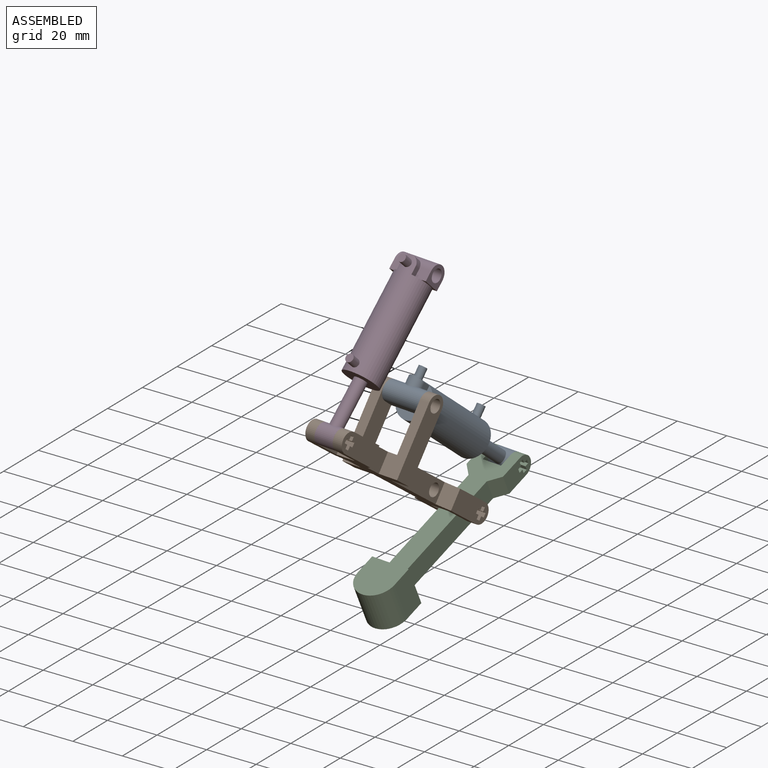
[diagram: assembled view]
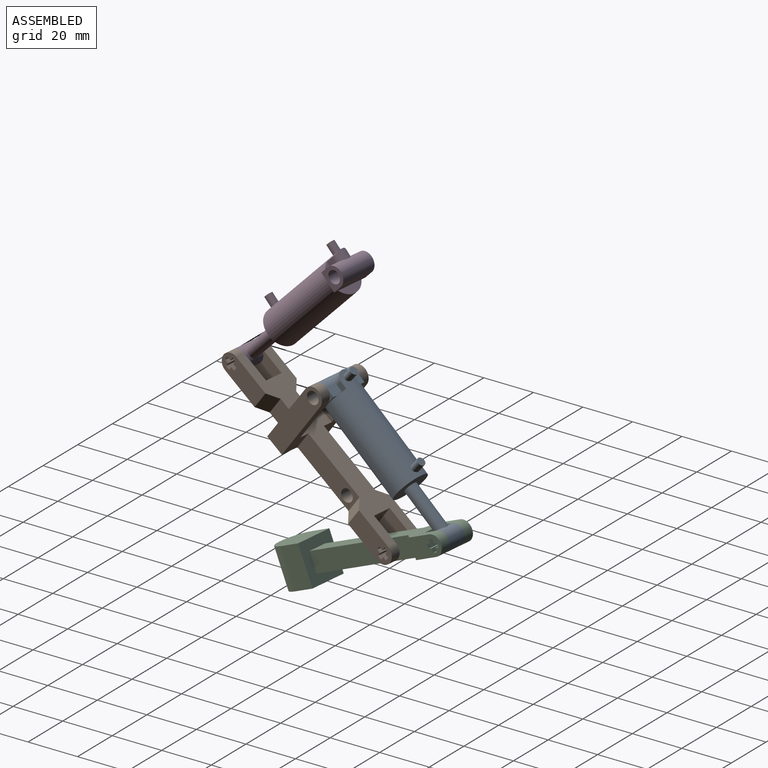
[diagram: assembled view, second angle]
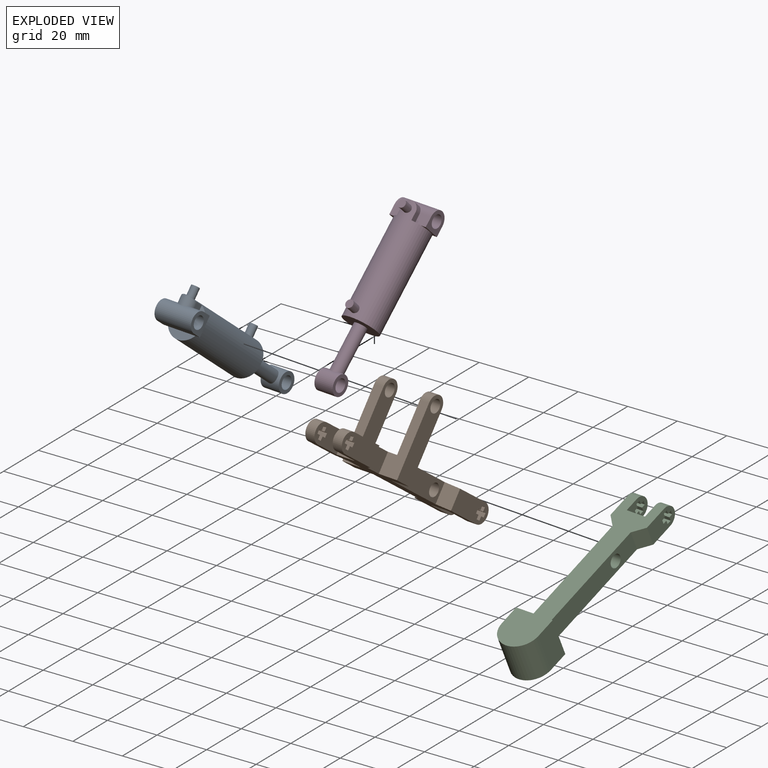
[diagram: exploded view]
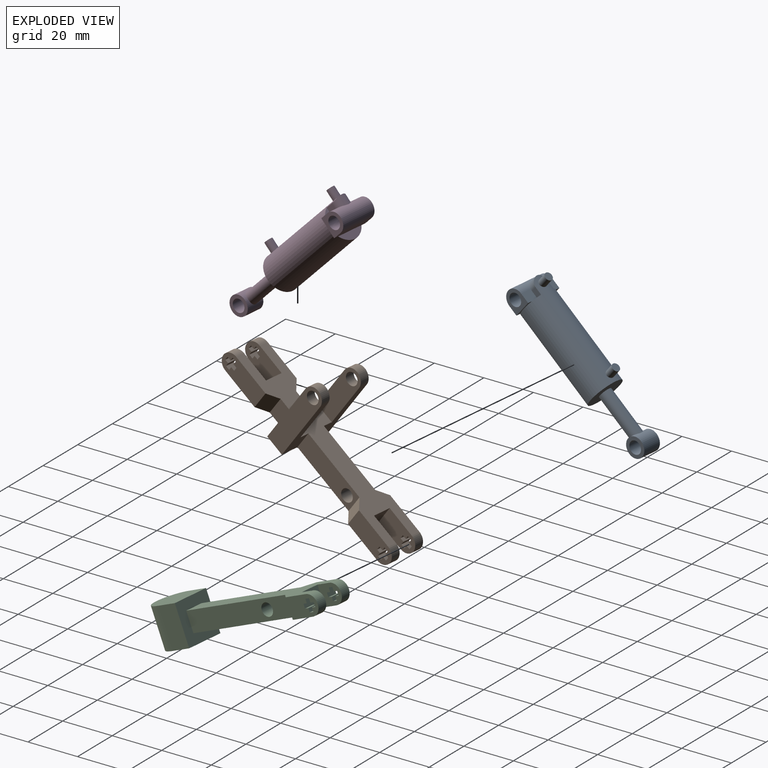
[diagram: exploded view, second angle]
ASSEMBLY  parts=4 mates=7
PART A: 26 faces, bbox 15.9x18.3x71.4 mm
  f0: plane 2.77x2.43mm, normal (0,0,1), area 4mm2, adj f2,f4,f16
  f1: plane 4.86x3.97mm, normal (0,1,0), area 18.9mm2, adj f5,f8,f9,f12,f14,f15
  f2: plane 4.86x3.97mm, normal (0,1,0), area 18.9mm2, adj f0,f7,f10,f12,f14,f16
  f3: plane 11.88x3.18mm, normal (0,0,1), area 26.5mm2, adj f4,f11
  f4: cylinder r=7.14mm len=44.45mm, axis (0,0,-1), area 1731.3mm2, adj f0,f3,f5,f6,f7,f8,f14,f15
  f5: plane 2.77x2.43mm, normal (0,0,1), area 4mm2, adj f1,f4,f15
  f6: plane 14.29x14.29mm, normal (0,0,-1), area 140.1mm2, adj f4,f21
  f7: plane 7.94x2mm, normal (0,0,-1), area 9.4mm2, adj f2,f4,f10,f11
  f8: plane 7.94x2mm, normal (0,0,-1), area 9.4mm2, adj f1,f4,f9,f11
  f9: plane 7.94x7.94mm, normal (1,0,0), area 36mm2, adj f1,f8,f11,f12,f13
  f10: plane 7.94x7.94mm, normal (-1,0,0), area 36mm2, adj f2,f7,f11,f12,f13
  f11: plane 15.88x3.97mm, normal (0,-1,0), area 63mm2, adj f3,f7,f8,f9,f10,f12
  f12: cylinder r=3.97mm len=15.88mm, axis (1,0,0), area 186.5mm2, adj f1,f2,f9,f10,f11,f14
  f13: cylinder r=2.54mm len=15.88mm, axis (1,0,0), area 253.4mm2, adj f9,f10
  f14: cylinder r=3.17mm len=6.35mm, axis (0,-1,0), area 31.3mm2, adj f1,f2,f4,f12,f15,f16
  f15: plane 3.18x2.43mm, normal (1,0,0), area 7.7mm2, adj f1,f4,f5,f14
  f16: plane 3.18x2.43mm, normal (-1,0,0), area 7.7mm2, adj f0,f2,f4,f14
  f17: cylinder r=1.59mm len=4.2mm, axis (0,-1,0), area 41mm2, adj f4,f18
  f18: plane 3.18x3.18mm, normal (0,1,0), area 7.9mm2, adj f17
  f19: cylinder r=1.59mm len=4.2mm, axis (0,-1,0), area 41mm2, adj f4,f20
  f20: plane 3.18x3.18mm, normal (0,1,0), area 7.9mm2, adj f19
  f21: cylinder r=2.54mm len=18.38mm, axis (0,0,1), area 285.8mm2, adj f6,f24
  f22: plane 7.94x7.94mm, normal (1,0,0), area 29.2mm2, adj f24,f25
  f23: plane 7.94x7.94mm, normal (-1,0,0), area 29.2mm2, adj f24,f25
  f24: cylinder r=3.97mm len=7.94mm, axis (-1,0,0), area 176.4mm2, adj f21,f22,f23
  f25: cylinder r=2.54mm len=7.94mm, axis (-1,0,0), area 126.7mm2, adj f22,f23
PART B: 85 faces, bbox 23.8x90.5x31.8 mm
  f0: plane 82.55x15.88mm, normal (0,0,-1), area 812.8mm2, adj f1,f2,f3,f4,f5,f7,f8,f9
  f1: plane 7.94x7.14mm, normal (1,0,0), area 56.7mm2, adj f0,f6,f44,f52
  f2: plane 27.78x7.94mm, normal (-1,0,0), area 200.2mm2, adj f0,f6,f16,f45,f47
  f3: plane 15.88x7.94mm, normal (1,0,0), area 105.8mm2, adj f0,f6,f8,f18,f19,f20,f21,f22
  f4: plane 15.88x7.94mm, normal (-1,0,0), area 105.8mm2, adj f0,f6,f8,f17,f31,f32,f33,f34
  f5: plane 19.84x7.94mm, normal (1,0,0), area 137.3mm2, adj f0,f6,f17,f31,f32,f33,f34,f35
  f6: plane 82.55x23.81mm, normal (0,0,1), area 875.8mm2, adj f1,f2,f3,f4,f5,f7,f8,f9
  f7: plane 19.84x7.94mm, normal (-1,0,0), area 137.3mm2, adj f0,f6,f18,f19,f20,f21,f22,f23
  f8: plane 7.94x7.94mm, normal (0,-1,0), area 63mm2, adj f0,f3,f4,f6
  f9: plane 27.78x7.94mm, normal (1,0,0), area 200.2mm2, adj f0,f6,f16,f46,f50
  f10: plane 19.84x7.94mm, normal (1,0,0), area 137.3mm2, adj f0,f6,f44,f58,f73,f74,f75,f76
  f11: plane 15.88x7.94mm, normal (-1,0,0), area 105.8mm2, adj f0,f6,f12,f58,f73,f74,f75,f76
  f12: plane 7.94x7.94mm, normal (0,1,0), area 63mm2, adj f0,f6,f11,f13
  f13: plane 15.88x7.94mm, normal (1,0,0), area 105.8mm2, adj f0,f6,f12,f57,f61,f62,f63,f64
  f14: plane 19.84x7.94mm, normal (-1,0,0), area 137.3mm2, adj f0,f6,f43,f57,f61,f62,f63,f64
  f15: plane 7.94x7.14mm, normal (-1,0,0), area 56.7mm2, adj f0,f6,f43,f49
  f16: cylinder r=2.54mm len=7.94mm, axis (1,0,0), area 126.7mm2, adj f2,f9
  f17: cylinder r=3.97mm len=7.94mm, axis (1,0,0), area 49.5mm2, adj f0,f4,f5,f6
  f18: cylinder r=3.97mm len=7.94mm, axis (1,0,0), area 49.5mm2, adj f0,f3,f6,f7
  f19: plane 3.97x1.57mm, normal (0,-1,0), area 6.2mm2, adj f3,f7,f20,f21
  f20: plane 3.97x1.57mm, normal (0,0,-1), area 6.2mm2, adj f3,f7,f19,f22
  f21: plane 3.97x1.69mm, normal (0,0,-1), area 6.7mm2, adj f3,f7,f19,f30
  f22: plane 3.97x1.69mm, normal (0,-1,0), area 6.7mm2, adj f3,f7,f20,f23
  f23: plane 3.97x1.57mm, normal (0,0,1), area 6.2mm2, adj f3,f7,f22,f24
  f24: plane 3.97x1.57mm, normal (0,-1,0), area 6.2mm2, adj f3,f7,f23,f25
  f25: plane 3.97x1.69mm, normal (0,0,1), area 6.7mm2, adj f3,f7,f24,f26
  f26: plane 3.97x1.57mm, normal (0,1,0), area 6.2mm2, adj f3,f7,f25,f27
  f27: plane 3.97x1.57mm, normal (0,0,1), area 6.2mm2, adj f3,f7,f26,f28
  f28: plane 3.97x1.69mm, normal (0,1,0), area 6.7mm2, adj f3,f7,f27,f29
  f29: plane 3.97x1.57mm, normal (0,0,-1), area 6.2mm2, adj f3,f7,f28,f30
  f30: plane 3.97x1.57mm, normal (0,1,0), area 6.2mm2, adj f3,f7,f21,f29
  f31: plane 3.97x1.57mm, normal (0,1,0), area 6.2mm2, adj f4,f5,f32,f40
  f32: plane 3.97x1.57mm, normal (0,0,-1), area 6.2mm2, adj f4,f5,f31,f33
  f33: plane 3.97x1.69mm, normal (0,1,0), area 6.7mm2, adj f4,f5,f32,f34
  f34: plane 3.97x1.57mm, normal (0,0,1), area 6.2mm2, adj f4,f5,f33,f35
  f35: plane 3.97x1.57mm, normal (0,1,0), area 6.2mm2, adj f4,f5,f34,f36
  f36: plane 3.97x1.69mm, normal (0,0,1), area 6.7mm2, adj f4,f5,f35,f37
  f37: plane 3.97x1.57mm, normal (0,-1,0), area 6.2mm2, adj f4,f5,f36,f38
  f38: plane 3.97x1.57mm, normal (0,0,1), area 6.2mm2, adj f4,f5,f37,f39
  f39: plane 3.97x1.69mm, normal (0,-1,0), area 6.7mm2, adj f4,f5,f38,f41
  f40: plane 3.97x1.69mm, normal (0,0,-1), area 6.7mm2, adj f4,f5,f31,f42
  f41: plane 3.97x1.57mm, normal (0,0,-1), area 6.2mm2, adj f4,f5,f39,f42
  f42: plane 3.97x1.57mm, normal (0,-1,0), area 6.2mm2, adj f4,f5,f40,f41
  f43: plane 7.94x3.97mm, normal (-0.71,-0.71,0), area 44.6mm2, adj f0,f6,f14,f15
  f44: plane 7.94x3.97mm, normal (0.71,-0.71,0), area 44.6mm2, adj f0,f1,f6,f10
  f45: plane 7.94x3.97mm, normal (-0.71,0.71,0), area 44.6mm2, adj f0,f2,f6,f7
  f46: plane 7.94x3.97mm, normal (0.71,0.71,0), area 44.6mm2, adj f0,f5,f6,f9
  f47: plane 27.78x7.94mm, normal (0,-1,0), area 141.8mm2, adj f0,f2,f6,f48,f54,f56
  f48: plane 31.75x7.94mm, normal (-1,0,0), area 225mm2, adj f6,f47,f49,f56,f59
  f49: plane 27.78x7.94mm, normal (0,1,0), area 141.8mm2, adj f0,f6,f15,f48,f54,f56
  f50: plane 27.78x7.94mm, normal (0,-1,0), area 141.8mm2, adj f0,f6,f9,f51,f53,f55
  f51: plane 31.75x7.94mm, normal (1,0,0), area 225mm2, adj f6,f50,f52,f55,f60
  f52: plane 27.78x7.94mm, normal (0,1,0), area 141.8mm2, adj f0,f1,f6,f51,f53,f55
  f53: plane 23.81x7.94mm, normal (-1,0,0), area 162mm2, adj f0,f50,f52,f55,f60
  f54: plane 23.81x7.94mm, normal (1,0,0), area 162mm2, adj f0,f47,f49,f56,f59
  f55: cylinder r=3.97mm len=7.94mm, axis (-1,0,0), area 49.5mm2, adj f50,f51,f52,f53
  f56: cylinder r=3.97mm len=7.94mm, axis (1,0,0), area 49.5mm2, adj f47,f48,f49,f54
  f57: cylinder r=3.97mm len=7.94mm, axis (1,0,0), area 49.5mm2, adj f0,f6,f13,f14
  f58: cylinder r=3.97mm len=7.94mm, axis (1,0,0), area 49.5mm2, adj f0,f6,f10,f11
  f59: cylinder r=2.54mm len=5.08mm, axis (-1,0,0), area 63.3mm2, adj f48,f54
  f60: cylinder r=2.54mm len=5.08mm, axis (-1,0,0), area 63.3mm2, adj f51,f53
  f61: plane 3.97x1.57mm, normal (0,0,1), area 6.2mm2, adj f13,f14,f62,f63
  f62: plane 3.97x1.69mm, normal (0,1,0), area 6.7mm2, adj f13,f14,f61,f64
  f63: plane 3.97x1.57mm, normal (0,1,0), area 6.2mm2, adj f13,f14,f61,f72
  f64: plane 3.97x1.57mm, normal (0,0,-1), area 6.2mm2, adj f13,f14,f62,f65
  f65: plane 3.97x1.57mm, normal (0,1,0), area 6.2mm2, adj f13,f14,f64,f66
  f66: plane 3.97x1.69mm, normal (0,0,-1), area 6.7mm2, adj f13,f14,f65,f67
  f67: plane 3.97x1.57mm, normal (0,-1,0), area 6.2mm2, adj f13,f14,f66,f68
  f68: plane 3.97x1.57mm, normal (0,0,-1), area 6.2mm2, adj f13,f14,f67,f69
  f69: plane 3.97x1.69mm, normal (0,-1,0), area 6.7mm2, adj f13,f14,f68,f70
  f70: plane 3.97x1.57mm, normal (0,0,1), area 6.2mm2, adj f13,f14,f69,f71
  f71: plane 3.97x1.57mm, normal (0,-1,0), area 6.2mm2, adj f13,f14,f70,f72
  f72: plane 3.97x1.69mm, normal (0,0,1), area 6.7mm2, adj f13,f14,f63,f71
  f73: plane 3.97x1.69mm, normal (0,0,1), area 6.7mm2, adj f10,f11,f74,f82
  f74: plane 3.97x1.57mm, normal (0,-1,0), area 6.2mm2, adj f10,f11,f73,f75
  f75: plane 3.97x1.57mm, normal (0,0,1), area 6.2mm2, adj f10,f11,f74,f76
  f76: plane 3.97x1.69mm, normal (0,-1,0), area 6.7mm2, adj f10,f11,f75,f77
  f77: plane 3.97x1.57mm, normal (0,0,-1), area 6.2mm2, adj f10,f11,f76,f78
  f78: plane 3.97x1.57mm, normal (0,-1,0), area 6.2mm2, adj f10,f11,f77,f79
  f79: plane 3.97x1.69mm, normal (0,0,-1), area 6.7mm2, adj f10,f11,f78,f80
  f80: plane 3.97x1.57mm, normal (0,1,0), area 6.2mm2, adj f10,f11,f79,f81
  f81: plane 3.97x1.57mm, normal (0,0,-1), area 6.2mm2, adj f10,f11,f80,f83
  f82: plane 3.97x1.57mm, normal (0,1,0), area 6.2mm2, adj f10,f11,f73,f84
  f83: plane 3.97x1.69mm, normal (0,1,0), area 6.7mm2, adj f10,f11,f81,f84
  f84: plane 3.97x1.57mm, normal (0,0,1), area 6.2mm2, adj f10,f11,f82,f83
PART C: 44 faces, bbox 15.9x80.2x15.9 mm
  f0: plane 9.53x7.94mm, normal (1,0,0), area 55.4mm2, adj f3,f4,f6,f11,f12,f13,f14,f15
  f1: plane 9.53x7.94mm, normal (-1,0,0), area 55.4mm2, adj f3,f4,f6,f10,f24,f25,f26,f27
  f2: plane 13.49x7.94mm, normal (1,0,0), area 86.9mm2, adj f3,f4,f10,f24,f25,f26,f27,f28
  f3: plane 60.33x15.88mm, normal (0,0,1), area 526.1mm2, adj f0,f1,f2,f5,f6,f7,f8,f10
  f4: plane 60.33x15.88mm, normal (0,0,-1), area 526.1mm2, adj f0,f1,f2,f5,f6,f7,f8,f10
  f5: plane 13.49x7.94mm, normal (-1,0,0), area 86.9mm2, adj f3,f4,f11,f12,f13,f14,f15,f16
  f6: plane 7.94x7.94mm, normal (0,-1,0), area 63mm2, adj f0,f1,f3,f4
  f7: plane 46.83x7.94mm, normal (1,0,0), area 351.5mm2, adj f3,f4,f9,f37,f38
  f8: plane 46.83x7.94mm, normal (-1,0,0), area 351.5mm2, adj f3,f4,f9,f36,f38
  f9: cylinder r=2.54mm len=7.94mm, axis (1,0,0), area 126.7mm2, adj f7,f8
  f10: cylinder r=3.97mm len=7.94mm, axis (1,0,0), area 49.5mm2, adj f1,f2,f3,f4
  f11: cylinder r=3.97mm len=7.94mm, axis (1,0,0), area 49.5mm2, adj f0,f3,f4,f5
  f12: plane 3.97x1.57mm, normal (0,-1,0), area 6.2mm2, adj f0,f5,f13,f14
  f13: plane 3.97x1.57mm, normal (0,0,-1), area 6.2mm2, adj f0,f5,f12,f15
  f14: plane 3.97x1.69mm, normal (0,0,-1), area 6.7mm2, adj f0,f5,f12,f23
  f15: plane 3.97x1.69mm, normal (0,-1,0), area 6.7mm2, adj f0,f5,f13,f16
  f16: plane 3.97x1.57mm, normal (0,0,1), area 6.2mm2, adj f0,f5,f15,f17
  f17: plane 3.97x1.57mm, normal (0,-1,0), area 6.2mm2, adj f0,f5,f16,f18
  f18: plane 3.97x1.69mm, normal (0,0,1), area 6.7mm2, adj f0,f5,f17,f19
  f19: plane 3.97x1.57mm, normal (0,1,0), area 6.2mm2, adj f0,f5,f18,f20
  f20: plane 3.97x1.57mm, normal (0,0,1), area 6.2mm2, adj f0,f5,f19,f21
  f21: plane 3.97x1.69mm, normal (0,1,0), area 6.7mm2, adj f0,f5,f20,f22
  f22: plane 3.97x1.57mm, normal (0,0,-1), area 6.2mm2, adj f0,f5,f21,f23
  f23: plane 3.97x1.57mm, normal (0,1,0), area 6.2mm2, adj f0,f5,f14,f22
  f24: plane 3.97x1.57mm, normal (0,1,0), area 6.2mm2, adj f1,f2,f25,f33
  f25: plane 3.97x1.57mm, normal (0,0,-1), area 6.2mm2, adj f1,f2,f24,f26
  f26: plane 3.97x1.69mm, normal (0,1,0), area 6.7mm2, adj f1,f2,f25,f27
  f27: plane 3.97x1.57mm, normal (0,0,1), area 6.2mm2, adj f1,f2,f26,f28
  f28: plane 3.97x1.57mm, normal (0,1,0), area 6.2mm2, adj f1,f2,f27,f29
  f29: plane 3.97x1.69mm, normal (0,0,1), area 6.7mm2, adj f1,f2,f28,f30
  f30: plane 3.97x1.57mm, normal (0,-1,0), area 6.2mm2, adj f1,f2,f29,f31
  f31: plane 3.97x1.57mm, normal (0,0,1), area 6.2mm2, adj f1,f2,f30,f32
  f32: plane 3.97x1.69mm, normal (0,-1,0), area 6.7mm2, adj f1,f2,f31,f34
  f33: plane 3.97x1.69mm, normal (0,0,-1), area 6.7mm2, adj f1,f2,f24,f35
  f34: plane 3.97x1.57mm, normal (0,0,-1), area 6.2mm2, adj f1,f2,f32,f35
  f35: plane 3.97x1.57mm, normal (0,-1,0), area 6.2mm2, adj f1,f2,f33,f34
  f36: plane 7.94x3.97mm, normal (-0.71,0.71,0), area 44.6mm2, adj f3,f4,f5,f8
  f37: plane 7.94x3.97mm, normal (0.71,0.71,0), area 44.6mm2, adj f2,f3,f4,f7
  f38: plane 15.88x15.88mm, normal (0,-1,0), area 189mm2, adj f3,f4,f7,f8,f39,f40,f41,f42
  f39: plane 15.88x15.88mm, normal (0,0,-1), area 225mm2, adj f38,f40,f42,f43
  f40: plane 15.88x7.94mm, normal (-1,0,0), area 126mm2, adj f38,f39,f41,f43
  f41: plane 15.88x15.88mm, normal (0,0,1), area 225mm2, adj f38,f40,f42,f43
  f42: plane 15.88x7.94mm, normal (1,0,0), area 126mm2, adj f38,f39,f41,f43
  f43: cylinder r=7.94mm len=15.88mm, axis (0,0,1), area 395.9mm2, adj f39,f40,f41,f42
PART D: same geometry as A
PLACE A rot(axis=(0.99,-0.06,-0.1),50.8deg) t=(-81.48,115.37,-34.04)mm
PLACE B rot(axis=(1,-0.05,-0.01),143.6deg) t=(-90.81,100.66,-44.55)mm
PLACE C rot(axis=(-1,0.05,-0.01),156.5deg) t=(-88.69,122.33,-47.88)mm
PLACE D rot(axis=(0.02,0.38,0.92),174.7deg) t=(-87.21,59.23,7.14)mm
MATE cylindrical A.f24 <-> C.f10  axis (-1,0.1,-0.01) through (-79.79,131.84,-47.66)mm
MATE planar D.f24 <-> B.f13  axis (-1,0.1,-0.01) through (-92.52,44.57,-8.1)mm
MATE planar A.f24 <-> C.f1  axis (1,-0.1,0.01) through (-75.84,131.45,-47.63)mm
MATE cylindrical B.f17 <-> C.f9  axis (1,-0.1,0.01) through (-85.77,110.63,-57.14)mm
MATE cylindrical B.f55 <-> A.f12  axis (-1,0.1,-0.01) through (-74.93,82.1,-7.24)mm
MATE cylindrical B.f57 <-> D.f24  axis (1,-0.1,0.01) through (-82.64,43.62,-8.03)mm
MATE planar B.f3 <-> C.f8  axis (1,-0.1,0.01) through (-86.17,106.69,-54.22)mm
